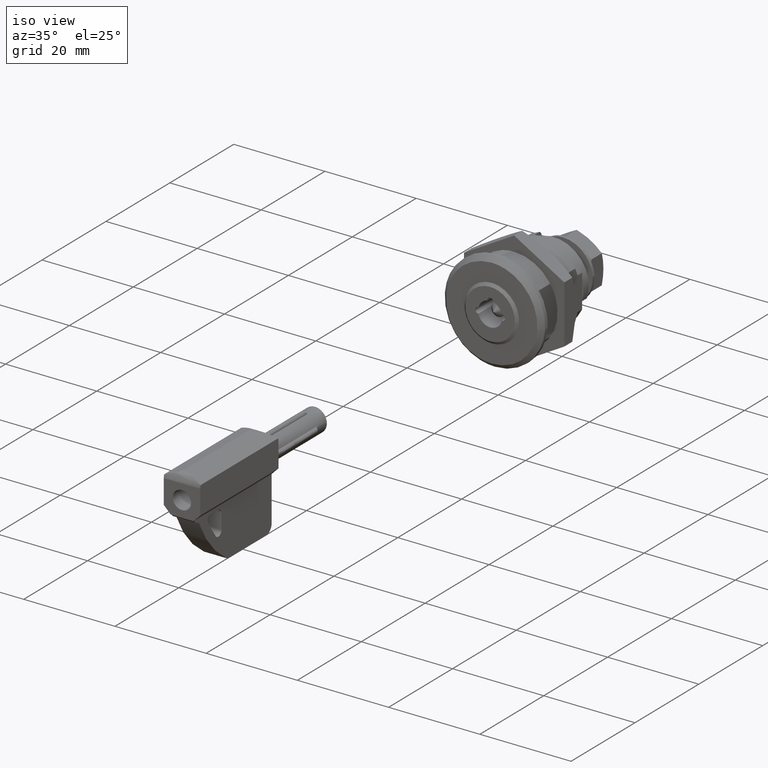
[diagram: clean part render]
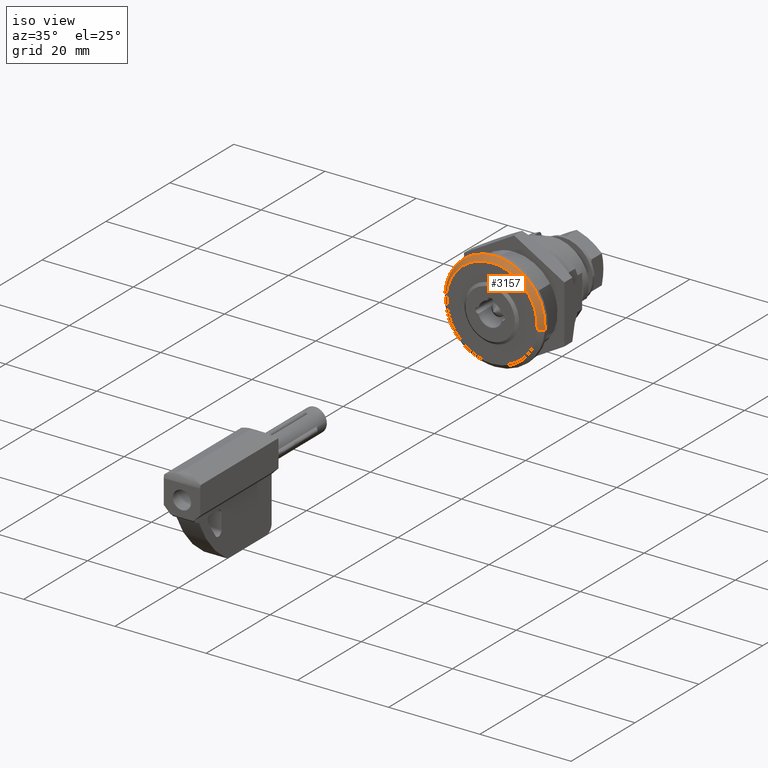
[diagram: same view with one face highlighted and labeled with its STEP entity id]
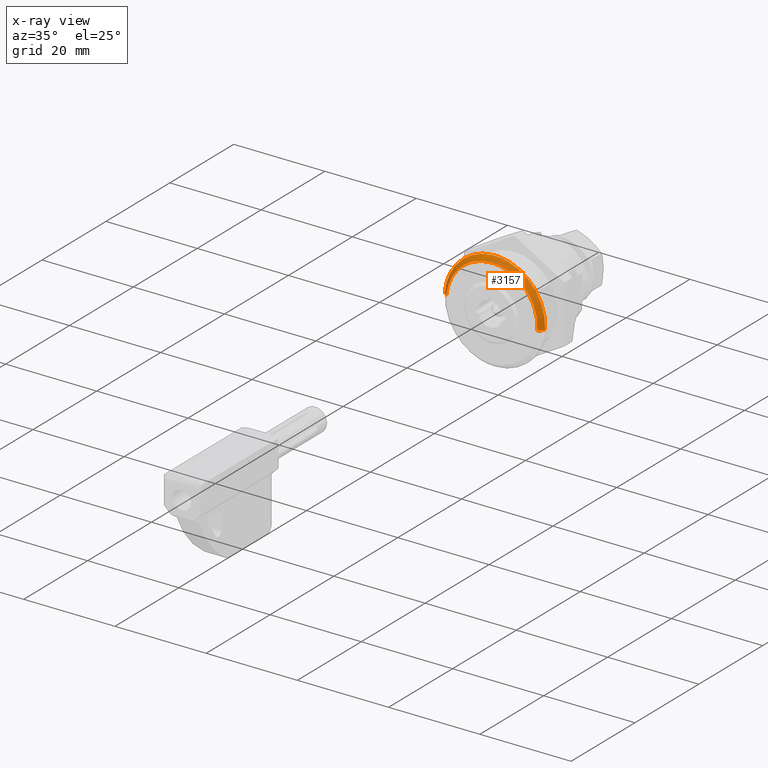
[diagram: x-ray of the same camera — body ghosted, the highlighted face saturated]
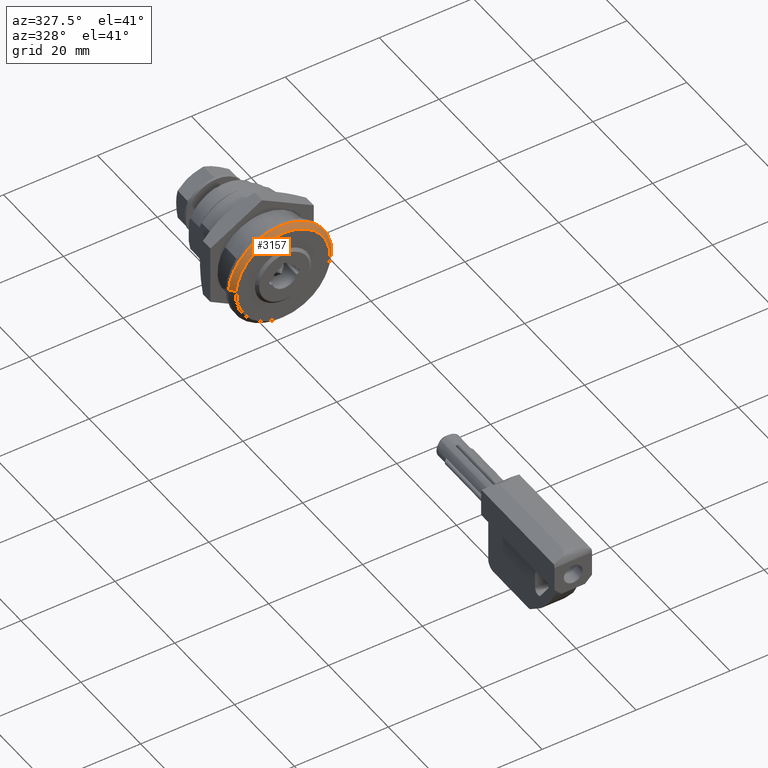
[diagram: same view with one face highlighted and labeled with its STEP entity id]
A machine part, iso view. The second image highlights one B-rep face of the part: STEP entity #3157.
The next image is the same camera in x-ray: the body ghosted, the highlighted face saturated — about 0% of this face is hidden behind the body in this view.
A second angle (auxiliary view) of the same face is appended — the face is thin or edge-on in the first view.
In plain terms, the highlighted face is a freeform B-spline surface patch.
Its self-contained STEP definition (entity closure, byte-faithful):
#3003=CARTESIAN_POINT('',(-1.224606E-016,-2.0,10.0));
#3004=VERTEX_POINT('',#3003);
#3005=CARTESIAN_POINT('',(-9.969173337337445,-1.999999999984638,0.784590957395488));
#3006=VERTEX_POINT('',#3005);
#3007=CARTESIAN_POINT('',(-1.224606E-016,-2.0,10.0));
#3008=CARTESIAN_POINT('',(-9.243904916481970,-1.999999999992318,10.000000000000602));
#3009=CARTESIAN_POINT('',(-9.969173337337445,-1.999999999984639,0.784590957395488));
#3017=(BOUNDED_CURVE()B_SPLINE_CURVE(2,(#3007,#3008,#3009),.UNSPECIFIED.,.F.,.U.)B_SPLINE_CURVE_WITH_KNOTS((3,3),(0.0,0.236331300630775),.UNSPECIFIED.)CURVE()GEOMETRIC_REPRESENTATION_ITEM()RATIONAL_B_SPLINE_CURVE((1.0,0.723120658607530,0.969723356167659))REPRESENTATION_ITEM(''));
#3018=EDGE_CURVE('',#3004,#3006,#3017,.T.);
#3037=CARTESIAN_POINT('',(9.969173337337448,-1.999999999984639,-0.784590957395489));
#3038=VERTEX_POINT('',#3037);
#3052=CARTESIAN_POINT('',(9.969173337337448,-1.999999999984640,-0.784590957395489));
#3053=CARTESIAN_POINT('',(10.000000000015007,-1.999999999984918,-0.392901070136064));
#3054=CARTESIAN_POINT('',(10.000000000014710,-1.999999999985220,-1.156168E-012));
#3055=CARTESIAN_POINT('',(10.000000000007066,-1.999999999992900,9.999999999999444));
#3056=CARTESIAN_POINT('',(-1.224606E-016,-2.0,10.0));
#3064=(BOUNDED_CURVE()B_SPLINE_CURVE(2,(#3052,#3053,#3054,#3055,#3056),.UNSPECIFIED.,.F.,.U.)B_SPLINE_CURVE_WITH_KNOTS((3,2,3),(0.736331300630775,0.750000000000000,1.0),.UNSPECIFIED.)CURVE()GEOMETRIC_REPRESENTATION_ITEM()RATIONAL_B_SPLINE_CURVE((0.969723356167659,0.983986122579017,1.0,0.707106781186548,1.0))REPRESENTATION_ITEM(''));
#3065=EDGE_CURVE('',#3038,#3004,#3064,.T.);
#3076=CARTESIAN_POINT('',(-9.944250403987887,-2.025000000000000,0.782629479885254));
#3077=CARTESIAN_POINT('',(-9.161620924102632,-2.024999999999999,10.726879883873142));
#3078=CARTESIAN_POINT('',(0.782629479885254,-2.025000000000000,9.944250403987887));
#3079=CARTESIAN_POINT('',(10.726879883873142,-2.025000000000000,9.161620924102632));
#3080=CARTESIAN_POINT('',(9.944250403987887,-2.025000000000000,-0.782629479885254));
#3081=CARTESIAN_POINT('',(-10.991636677741321,-0.974374999999999,0.865060567334327));
#3082=CARTESIAN_POINT('',(-10.126576110406990,-0.974374999999999,11.856697245075644));
#3083=CARTESIAN_POINT('',(0.865060567334327,-0.974375000000000,10.991636677741321));
#3084=CARTESIAN_POINT('',(11.856697245075644,-0.974375000000001,10.126576110406990));
#3085=CARTESIAN_POINT('',(10.991636677741321,-0.974375000000001,-0.865060567334327));
#3093=(BOUNDED_SURFACE()B_SPLINE_SURFACE(2,1,((#3076,#3081),(#3077,#3082),(#3078,#3083),(#3079,#3084),(#3080,#3085)),.UNSPECIFIED.,.F.,.F.,.U.)B_SPLINE_SURFACE_WITH_KNOTS((3,2,3),(2,2),(0.0,18.267853634559419,36.535707269118838),(0.0,1.0),.UNSPECIFIED.)GEOMETRIC_REPRESENTATION_ITEM()RATIONAL_B_SPLINE_SURFACE(((1.0,1.0),(0.707106781186548,0.707106781186548),(1.0,1.0),(0.707106781186548,0.707106781186548),(1.0,1.0)))REPRESENTATION_ITEM('')SURFACE());
#3094=CARTESIAN_POINT('',(-6.123032E-017,-1.0,11.0));
#3095=VERTEX_POINT('',#3094);
#3096=CARTESIAN_POINT('',(-10.966090671077479,-0.999999999966791,0.863050053263455));
#3097=VERTEX_POINT('',#3096);
#3098=CARTESIAN_POINT('',(-6.123032E-017,-1.0,11.0));
#3099=CARTESIAN_POINT('',(-10.168295408020061,-0.999999999983395,11.000000000001300));
#3100=CARTESIAN_POINT('',(-10.966090671077477,-0.999999999966791,0.863050053263455));
#3108=(BOUNDED_CURVE()B_SPLINE_CURVE(2,(#3098,#3099,#3100),.UNSPECIFIED.,.F.,.U.)B_SPLINE_CURVE_WITH_KNOTS((3,3),(0.0,0.236331300628788),.UNSPECIFIED.)CURVE()GEOMETRIC_REPRESENTATION_ITEM()RATIONAL_B_SPLINE_CURVE((1.0,0.723120658609859,0.969723356163511))REPRESENTATION_ITEM(''));
#3109=EDGE_CURVE('',#3095,#3097,#3108,.T.);
#3110=ORIENTED_EDGE('',*,*,#3109,.T.);
#3111=CARTESIAN_POINT('',(-9.969173337337445,-1.999999999984638,0.784590957395488));
#3112=CARTESIAN_POINT('',(-10.966090671077479,-0.999999999966791,0.863050053263455));
#3113=QUASI_UNIFORM_CURVE('',1,(#3111,#3112),.UNSPECIFIED.,.F.,.U.);
#3114=EDGE_CURVE('',#3006,#3097,#3113,.T.);
#3115=ORIENTED_EDGE('',*,*,#3114,.F.);
#3116=ORIENTED_EDGE('',*,*,#3018,.F.);
#3117=ORIENTED_EDGE('',*,*,#3065,.F.);
#3118=CARTESIAN_POINT('',(10.966090671077479,-0.999999999966792,-0.863050053263456));
#3119=VERTEX_POINT('',#3118);
#3120=CARTESIAN_POINT('',(9.969173337337448,-1.999999999984639,-0.784590957395489));
#3121=CARTESIAN_POINT('',(10.966090671077479,-0.999999999966792,-0.863050053263456));
#3122=QUASI_UNIFORM_CURVE('',1,(#3120,#3121),.UNSPECIFIED.,.F.,.U.);
#3123=EDGE_CURVE('',#3038,#3119,#3122,.T.);
#3124=ORIENTED_EDGE('',*,*,#3123,.T.);
#3125=CARTESIAN_POINT('',(10.979482903813860,-1.000000000000001,-0.671531953711138));
#3126=VERTEX_POINT('',#3125);
#3127=CARTESIAN_POINT('',(10.966090671077477,-0.999999999966792,-0.863050053263456));
#3128=CARTESIAN_POINT('',(10.973622472654121,-0.999999999983397,-0.767349440213956));
#3129=CARTESIAN_POINT('',(10.979482903813864,-1.000000000000001,-0.671531953711138));
#3137=(BOUNDED_CURVE()B_SPLINE_CURVE(2,(#3127,#3128,#3129),.UNSPECIFIED.,.F.,.U.)B_SPLINE_CURVE_WITH_KNOTS((3,3),(0.736331300628788,0.739332993376853),.UNSPECIFIED.)CURVE()GEOMETRIC_REPRESENTATION_ITEM()RATIONAL_B_SPLINE_CURVE((0.969723356163511,0.972855508049150,0.976072108401195))REPRESENTATION_ITEM(''));
#3138=EDGE_CURVE('',#3119,#3126,#3137,.T.);
#3139=ORIENTED_EDGE('',*,*,#3138,.T.);
#3140=CARTESIAN_POINT('',(10.979482903813864,-1.000000000000001,-0.671531953711138));
#3141=CARTESIAN_POINT('',(11.000000000000005,-1.000000000000001,-0.336079402920839));
#3142=CARTESIAN_POINT('',(11.0,-1.000000000000001,0.0));
#3143=CARTESIAN_POINT('',(11.0,-1.000000000000001,11.0));
#3144=CARTESIAN_POINT('',(-6.123032E-017,-1.0,11.0));
#3152=(BOUNDED_CURVE()B_SPLINE_CURVE(2,(#3140,#3141,#3142,#3143,#3144),.UNSPECIFIED.,.F.,.U.)B_SPLINE_CURVE_WITH_KNOTS((3,2,3),(0.739332993376853,0.750000000000000,1.0),.UNSPECIFIED.)CURVE()GEOMETRIC_REPRESENTATION_ITEM()RATIONAL_B_SPLINE_CURVE((0.976072108401195,0.987502824380168,1.0,0.707106781186548,1.0))REPRESENTATION_ITEM(''));
#3153=EDGE_CURVE('',#3126,#3095,#3152,.T.);
#3154=ORIENTED_EDGE('',*,*,#3153,.T.);
#3155=EDGE_LOOP('',(#3110,#3115,#3116,#3117,#3124,#3139,#3154));
#3156=FACE_OUTER_BOUND('',#3155,.T.);
#3157=ADVANCED_FACE('',(#3156),#3093,.T.);